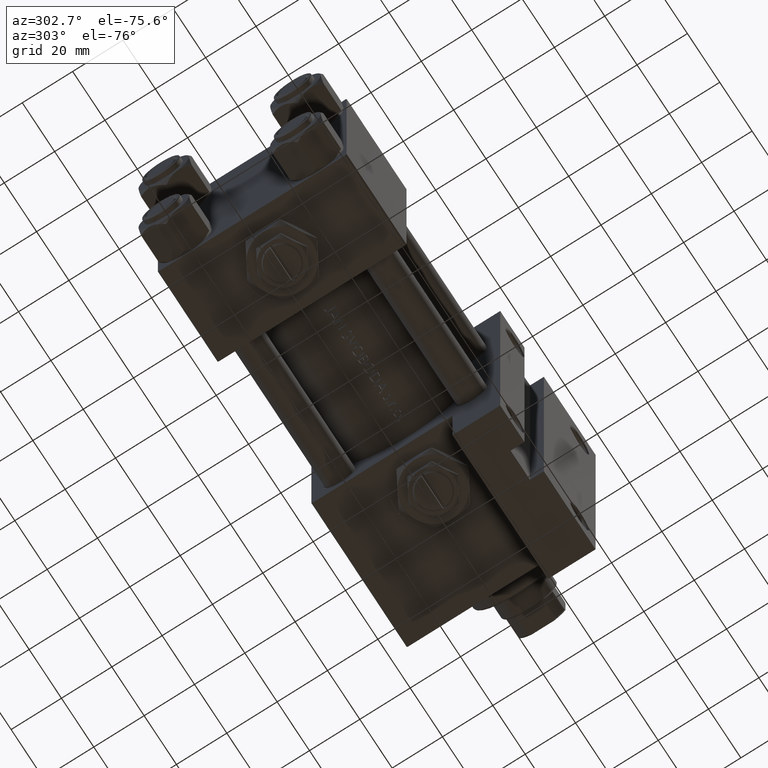
[diagram: clean part render]
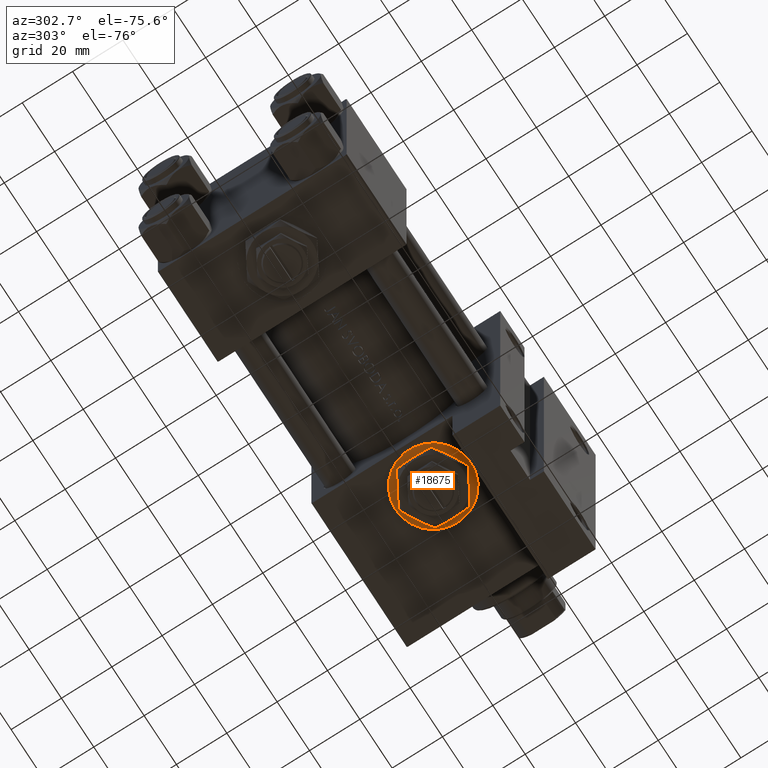
[diagram: same view with one face highlighted and labeled with its STEP entity id]
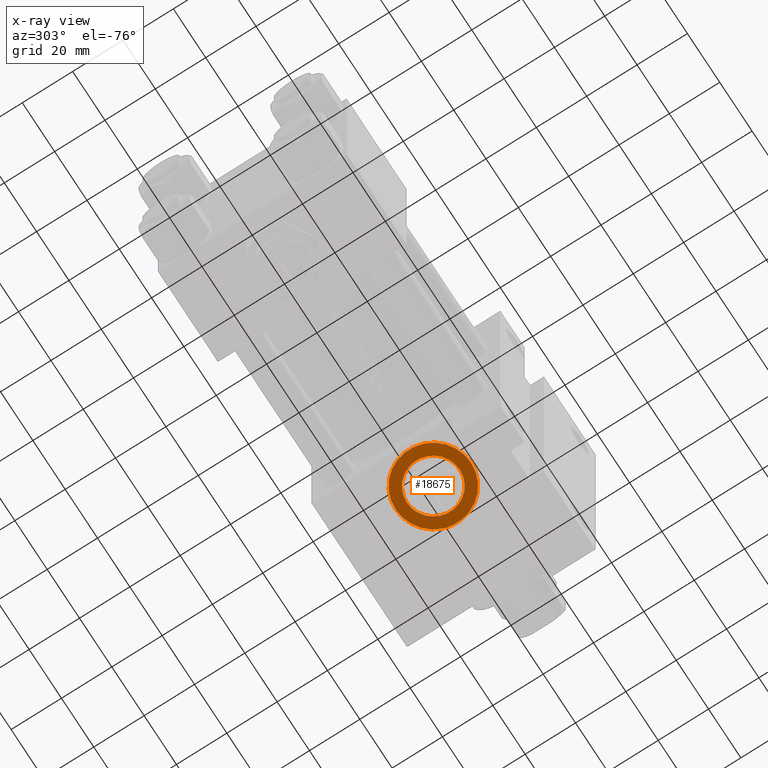
[diagram: x-ray of the same camera — body ghosted, the highlighted face saturated]
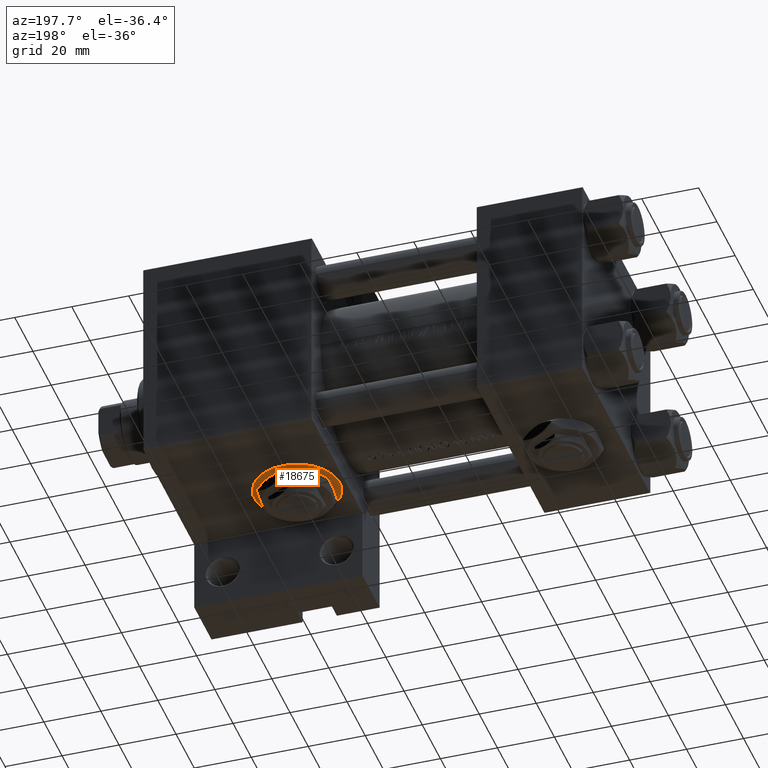
[diagram: same view with one face highlighted and labeled with its STEP entity id]
A machine part, auxiliary view. The second image highlights one B-rep face of the part: STEP entity #18675.
The next image is the same camera in x-ray: the body ghosted, the highlighted face saturated — about 0% of this face is hidden behind the body in this view.
A second angle (auxiliary view) of the same face is appended — the face is thin or edge-on in the first view.
In plain terms, the highlighted planar face has unit normal (0, 0, -1).
Its self-contained STEP definition (entity closure, byte-faithful):
#308 = ORIENTED_EDGE ( 'NONE', *, *, #16242, .F. ) ;
#1599 = DIRECTION ( 'NONE',  ( 0.000000000000000000, 1.000000000000000000, 0.000000000000000000 ) ) ;
#4157 = ORIENTED_EDGE ( 'NONE', *, *, #19548, .T. ) ;
#4189 = EDGE_LOOP ( 'NONE', ( #308, #24902 ) ) ;
#5044 = VERTEX_POINT ( 'NONE', #28502 ) ;
#5274 = EDGE_CURVE ( 'NONE', #5044, #26458, #47216, .T. ) ;
#6310 = AXIS2_PLACEMENT_3D ( 'NONE', #35524, #1599, #16926 ) ;
#9435 = AXIS2_PLACEMENT_3D ( 'NONE', #21963, #48089, #10155 ) ;
#10155 = DIRECTION ( 'NONE',  ( 0.000000000000000000, 0.000000000000000000, 1.000000000000000000 ) ) ;
#10245 = DIRECTION ( 'NONE',  ( 0.000000000000000000, 0.000000000000000000, 1.000000000000000000 ) ) ;
#10744 = FACE_OUTER_BOUND ( 'NONE', #42366, .T. ) ;
#13884 = CARTESIAN_POINT ( 'NONE',  ( 112.0000000000000000, 37.29999999999999716, 15.00000000000001243 ) ) ;
#16242 = EDGE_CURVE ( 'NONE', #48779, #22963, #26220, .T. ) ;
#16753 = AXIS2_PLACEMENT_3D ( 'NONE', #25323, #17322, #10245 ) ;
#16837 = EDGE_CURVE ( 'NONE', #22963, #48779, #35103, .T. ) ;
#16903 = DIRECTION ( 'NONE',  ( 0.000000000000000000, 1.000000000000000000, 0.000000000000000000 ) ) ;
#16926 = DIRECTION ( 'NONE',  ( 0.000000000000000000, 0.000000000000000000, 1.000000000000000000 ) ) ;
#17322 = DIRECTION ( 'NONE',  ( 0.000000000000000000, 1.000000000000000000, 0.000000000000000000 ) ) ;
#18675 = ADVANCED_FACE ( 'NONE', ( #45149, #10744 ), #26053, .T. ) ;
#19548 = EDGE_CURVE ( 'NONE', #26458, #5044, #47226, .T. ) ;
#21963 = CARTESIAN_POINT ( 'NONE',  ( 112.0000000000000000, 37.30000000000000426, 0.000000000000000000 ) ) ;
#22963 = VERTEX_POINT ( 'NONE', #34393 ) ;
#24902 = ORIENTED_EDGE ( 'NONE', *, *, #16837, .F. ) ;
#25030 = CARTESIAN_POINT ( 'NONE',  ( 112.0000000000000000, 37.30000000000000426, 10.48000000000000043 ) ) ;
#25323 = CARTESIAN_POINT ( 'NONE',  ( 112.0000000000000000, 37.29999999999999716, 0.000000000000000000 ) ) ;
#26053 = PLANE ( 'NONE',  #37566 ) ;
#26220 = CIRCLE ( 'NONE', #9435, 10.48000000000000043 ) ;
#26458 = VERTEX_POINT ( 'NONE', #13884 ) ;
#28502 = CARTESIAN_POINT ( 'NONE',  ( 112.0000000000000000, 37.29999999999999716, -15.00000000000001243 ) ) ;
#28776 = AXIS2_PLACEMENT_3D ( 'NONE', #40000, #16903, #32700 ) ;
#32700 = DIRECTION ( 'NONE',  ( 0.000000000000000000, 0.000000000000000000, 1.000000000000000000 ) ) ;
#34393 = CARTESIAN_POINT ( 'NONE',  ( 112.0000000000000000, 37.30000000000000426, -10.48000000000000043 ) ) ;
#35103 = CIRCLE ( 'NONE', #6310, 10.48000000000000043 ) ;
#35524 = CARTESIAN_POINT ( 'NONE',  ( 112.0000000000000000, 37.30000000000000426, 0.000000000000000000 ) ) ;
#37370 = CARTESIAN_POINT ( 'NONE',  ( 112.0000000000000000, 37.29999999999999716, 0.000000000000000000 ) ) ;
#37566 = AXIS2_PLACEMENT_3D ( 'NONE', #37370, #37619, #45396 ) ;
#37619 = DIRECTION ( 'NONE',  ( 0.000000000000000000, 1.000000000000000000, 0.000000000000000000 ) ) ;
#40000 = CARTESIAN_POINT ( 'NONE',  ( 112.0000000000000000, 37.29999999999999716, 0.000000000000000000 ) ) ;
#40700 = ORIENTED_EDGE ( 'NONE', *, *, #5274, .T. ) ;
#42366 = EDGE_LOOP ( 'NONE', ( #4157, #40700 ) ) ;
#45149 = FACE_BOUND ( 'NONE', #4189, .T. ) ;
#45396 = DIRECTION ( 'NONE',  ( 0.000000000000000000, -0.000000000000000000, 1.000000000000000000 ) ) ;
#47216 = CIRCLE ( 'NONE', #28776, 15.00000000000001243 ) ;
#47226 = CIRCLE ( 'NONE', #16753, 15.00000000000001243 ) ;
#48089 = DIRECTION ( 'NONE',  ( 0.000000000000000000, 1.000000000000000000, 0.000000000000000000 ) ) ;
#48779 = VERTEX_POINT ( 'NONE', #25030 ) ;